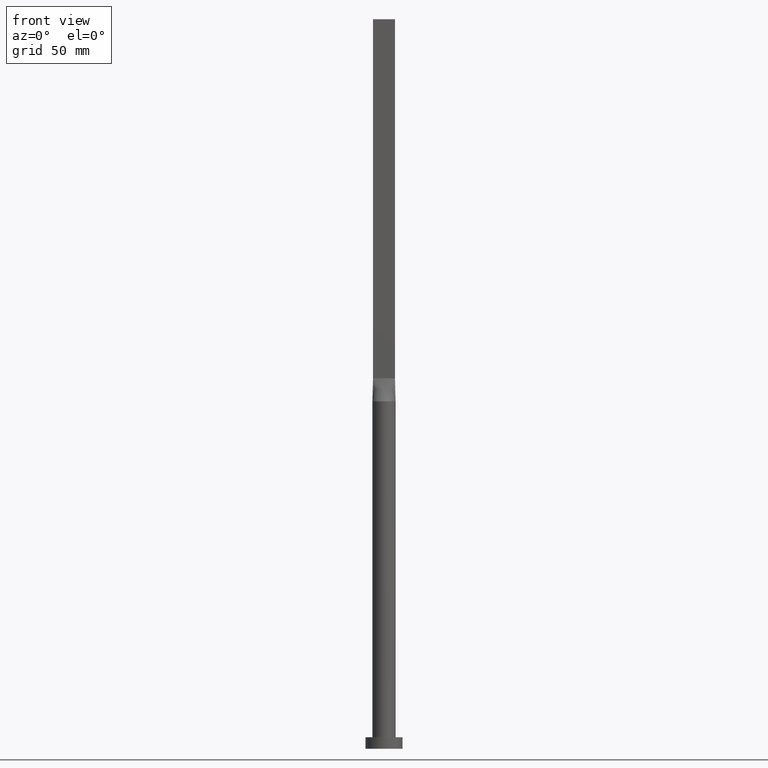
[diagram: clean part render]
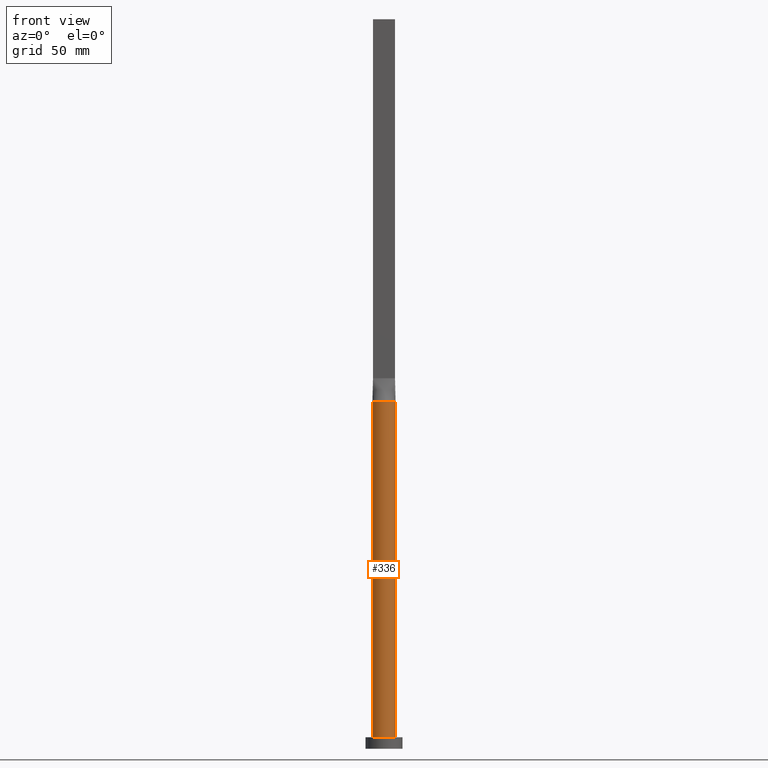
[diagram: same view with one face highlighted and labeled with its STEP entity id]
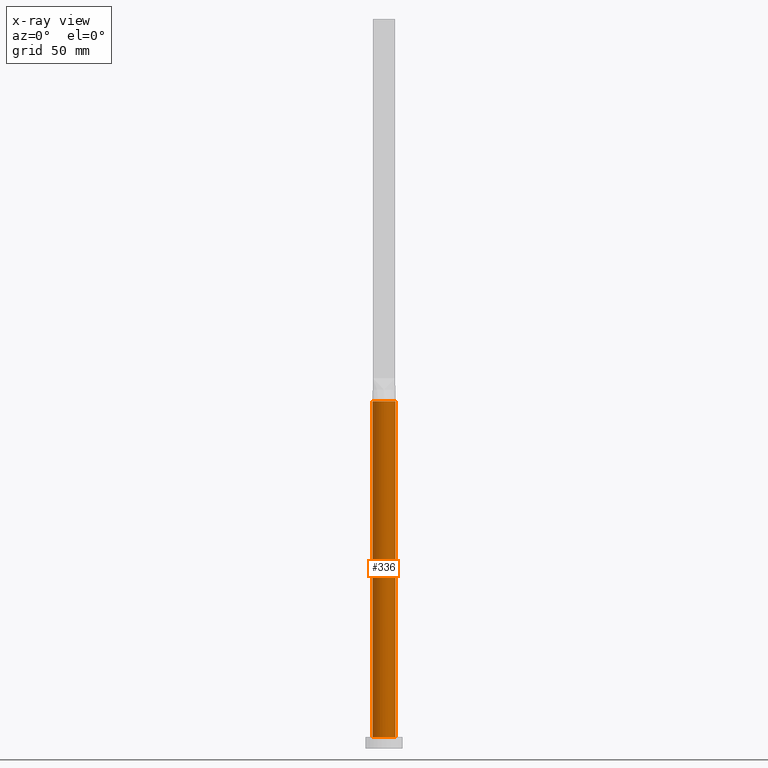
[diagram: x-ray of the same camera — body ghosted, the highlighted face saturated]
A machine part, front view. The second image highlights one B-rep face of the part: STEP entity #336.
The next image is the same camera in x-ray: the body ghosted, the highlighted face saturated — about 0% of this face is hidden behind the body in this view.
In plain terms, the highlighted cylindrical surface (edge-blend (fillet) strip) has radius 5 mm, axis along (-0, -0, -1).
Its self-contained STEP definition (entity closure, byte-faithful):
#6 = AXIS2_PLACEMENT_3D ( 'NONE', #248, #101, #45 ) ;
#29 = VECTOR ( 'NONE', #381, 1000.000000000000000 ) ;
#36 = VERTEX_POINT ( 'NONE', #251 ) ;
#39 = AXIS2_PLACEMENT_3D ( 'NONE', #47, #296, #245 ) ;
#42 = EDGE_CURVE ( 'NONE', #239, #352, #111, .T. ) ;
#45 = DIRECTION ( 'NONE',  ( 1.000000000000000000, 0.000000000000000000, 0.000000000000000000 ) ) ;
#47 = CARTESIAN_POINT ( 'NONE',  ( 0.000000000000000000, 0.000000000000000000, 150.0000000000000000 ) ) ;
#49 = EDGE_CURVE ( 'NONE', #352, #549, #572, .T. ) ;
#64 = ORIENTED_EDGE ( 'NONE', *, *, #175, .T. ) ;
#66 = EDGE_CURVE ( 'NONE', #549, #453, #144, .T. ) ;
#79 = CARTESIAN_POINT ( 'NONE',  ( 0.000000000000000000, 0.000000000000000000, 150.0000000000000000 ) ) ;
#101 = DIRECTION ( 'NONE',  ( 0.000000000000000000, 0.000000000000000000, 1.000000000000000000 ) ) ;
#111 = CIRCLE ( 'NONE', #39, 5.000000000000000000 ) ;
#119 = ORIENTED_EDGE ( 'NONE', *, *, #42, .F. ) ;
#123 = CYLINDRICAL_SURFACE ( 'NONE', #360, 5.000000000000000000 ) ;
#129 = DIRECTION ( 'NONE',  ( -0.000000000000000000, -0.000000000000000000, -1.000000000000000000 ) ) ;
#144 = LINE ( 'NONE', #571, #215 ) ;
#147 = CARTESIAN_POINT ( 'NONE',  ( 0.000000000000000000, 0.000000000000000000, 150.0000000000000000 ) ) ;
#161 = ORIENTED_EDGE ( 'NONE', *, *, #403, .T. ) ;
#170 = ORIENTED_EDGE ( 'NONE', *, *, #49, .F. ) ;
#175 = EDGE_CURVE ( 'NONE', #322, #453, #284, .T. ) ;
#178 = CARTESIAN_POINT ( 'NONE',  ( 0.000000000000000000, 0.000000000000000000, 150.0000000000000000 ) ) ;
#179 = EDGE_LOOP ( 'NONE', ( #536, #170, #119, #492, #161, #64 ) ) ;
#197 = AXIS2_PLACEMENT_3D ( 'NONE', #178, #311, #601 ) ;
#200 = DIRECTION ( 'NONE',  ( 0.000000000000000000, 0.000000000000000000, 1.000000000000000000 ) ) ;
#215 = VECTOR ( 'NONE', #338, 1000.000000000000000 ) ;
#226 = CIRCLE ( 'NONE', #197, 5.000000000000000000 ) ;
#227 = DIRECTION ( 'NONE',  ( -1.000000000000000000, 0.000000000000000000, 0.000000000000000000 ) ) ;
#235 = LINE ( 'NONE', #423, #29 ) ;
#239 = VERTEX_POINT ( 'NONE', #252 ) ;
#245 = DIRECTION ( 'NONE',  ( 1.000000000000000000, 0.000000000000000000, 0.000000000000000000 ) ) ;
#248 = CARTESIAN_POINT ( 'NONE',  ( 0.000000000000000000, 0.000000000000000000, 5.000000000000000000 ) ) ;
#251 = CARTESIAN_POINT ( 'NONE',  ( -4.999812818728077701, -1.193032336741890821E-15, 150.0000000000000000 ) ) ;
#252 = CARTESIAN_POINT ( 'NONE',  ( -4.938821632323166178, -0.7798139456827060112, 150.0000000000000000 ) ) ;
#284 = CIRCLE ( 'NONE', #6, 5.000000000000000000 ) ;
#296 = DIRECTION ( 'NONE',  ( 0.000000000000000000, 0.000000000000000000, 1.000000000000000000 ) ) ;
#311 = DIRECTION ( 'NONE',  ( 0.000000000000000000, 0.000000000000000000, 1.000000000000000000 ) ) ;
#322 = VERTEX_POINT ( 'NONE', #598 ) ;
#336 = ADVANCED_FACE ( 'NONE', ( #595 ), #123, .T. ) ;
#338 = DIRECTION ( 'NONE',  ( -0.000000000000000000, -0.000000000000000000, -1.000000000000000000 ) ) ;
#352 = VERTEX_POINT ( 'NONE', #416 ) ;
#360 = AXIS2_PLACEMENT_3D ( 'NONE', #79, #129, #227 ) ;
#363 = EDGE_CURVE ( 'NONE', #36, #239, #226, .T. ) ;
#378 = CARTESIAN_POINT ( 'NONE',  ( 5.000000000000000000, 6.123233995736766282E-16, 5.000000000000000000 ) ) ;
#381 = DIRECTION ( 'NONE',  ( -0.000000000000000000, -0.000000000000000000, -1.000000000000000000 ) ) ;
#385 = DIRECTION ( 'NONE',  ( 1.000000000000000000, 2.664535259100375697E-15, 0.000000000000000000 ) ) ;
#392 = AXIS2_PLACEMENT_3D ( 'NONE', #147, #200, #385 ) ;
#403 = EDGE_CURVE ( 'NONE', #36, #322, #235, .T. ) ;
#416 = CARTESIAN_POINT ( 'NONE',  ( 4.938833698301754893, -0.7798158709413661738, 150.0000000000000000 ) ) ;
#422 = CARTESIAN_POINT ( 'NONE',  ( 4.999812818728077701, 1.241126956226958231E-15, 150.0000000000000000 ) ) ;
#423 = CARTESIAN_POINT ( 'NONE',  ( -5.000000000000000000, 0.000000000000000000, 150.0000000000000000 ) ) ;
#453 = VERTEX_POINT ( 'NONE', #378 ) ;
#492 = ORIENTED_EDGE ( 'NONE', *, *, #363, .F. ) ;
#536 = ORIENTED_EDGE ( 'NONE', *, *, #66, .F. ) ;
#549 = VERTEX_POINT ( 'NONE', #422 ) ;
#571 = CARTESIAN_POINT ( 'NONE',  ( 5.000000000000000000, 6.123233995736766282E-16, 150.0000000000000000 ) ) ;
#572 = CIRCLE ( 'NONE', #392, 5.000000000000000000 ) ;
#595 = FACE_OUTER_BOUND ( 'NONE', #179, .T. ) ;
#598 = CARTESIAN_POINT ( 'NONE',  ( -5.000000000000000000, 0.000000000000000000, 5.000000000000000000 ) ) ;
#601 = DIRECTION ( 'NONE',  ( 1.000000000000000000, 0.000000000000000000, 0.000000000000000000 ) ) ;